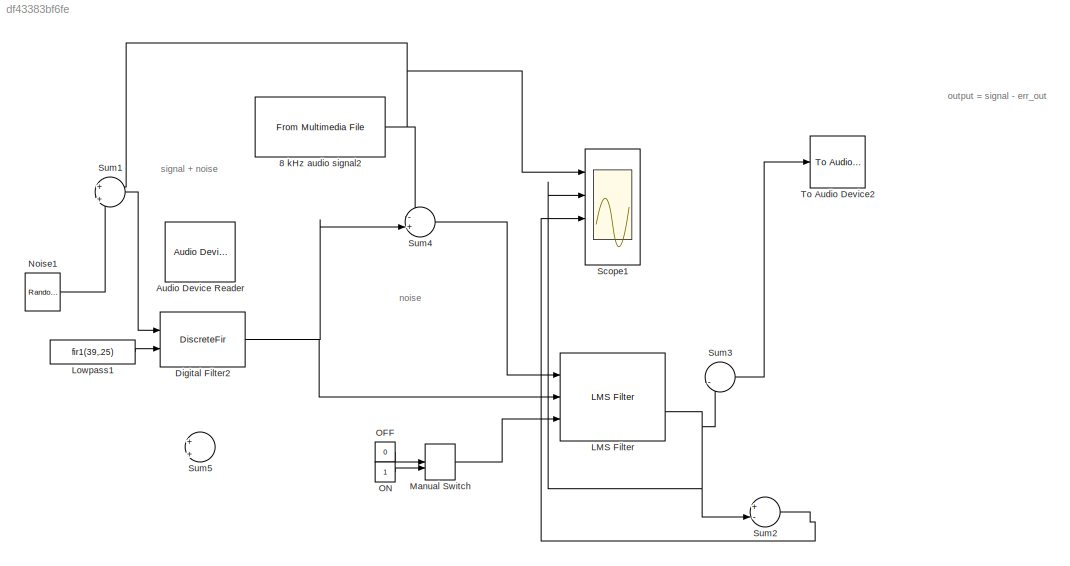
MODEL slx_df43383bf6fe
KIND model
CONFIG AbsTol = auto
CONFIG EnableMultiTasking = off
CONFIG FixedStep = auto
CONFIG MaxStep = auto
CONFIG MinStep = auto
CONFIG RelTol = 1e-3
CONFIG SampleTimeConstraint = Unconstrained
CONFIG Solver = VariableStepAuto
CONFIG SolverName = VariableStepAuto
CONFIG StartTime = 0.0
CONFIG StopTime = 100.0
BLOCK [Reference] 8 kHz audio signal2  REF=dspvision/From Multimedia File
  Ports = [0, 1]
  SourceBlock = dspvision/From Multimedia File
  SourceType = From Multimedia File
BLOCK [Reference] Audio Device Reader  REF=audiosources/Audio Device
Reader
  Ports = [0, 1]
  SourceBlock = audiosources/Audio Device\nReader
  SourceType = Audio Device Reader
BLOCK [DiscreteFir] Digital Filter2
  AccumDataTypeStr = Inherit: Same as product output
  CoefSource = Input port
  Coefficients = [1 2]
  InputPortMap = u0,u1
  InputProcessing = Columns as channels (frame based)
  OutDataTypeStr = Inherit: Same as input
  OutputPortMap = o0
  Ports = [2, 1]
  ProductDataTypeStr = Inherit: Same as input
  StateDataTypeStr = Inherit: Same as input
BLOCK [Reference] LMS Filter  REF=dspadpt3/LMS Filter
  Ports = [3, 2]
  SourceBlock = dspadpt3/LMS Filter
  SourceType = LMS Filter
BLOCK [Constant] Lowpass1
  OutDataTypeStr = Inherit: Inherit via back propagation
  Value = fir1(39,.25)
BLOCK [ManualSwitch] Manual Switch
  CurrentSetting = 0
BLOCK [Reference] Noise1  REF=dspsrcs4/Random
Source
  Ports = [0, 1]
  SourceBlock = dspsrcs4/Random\nSource
  SourceType = Random Source
  UserDataPersistent = on
BLOCK [Constant] OFF
  Value = 0
BLOCK [Constant] ON
BLOCK [Scope] Scope1
  NumInputPorts = 4
  Ports = [4]
  ScopeSpecificationString = Simulink.scopes.TimeScopeBlockCfg('CurrentConfiguration', extmgr.ConfigurationSet(extmgr.Configuration('Core','General UI',true),extmgr.Configuration('Core','Source UI',true),extmgr.Configuration('Sources','WiredSimulink',true,'DataLoggingVariableName','ScopeData1'),extmgr.Configuration('Visuals','Time Domain',true,'SerializedDisplays',{struct('MinYLimReal','-0.32025','MaxYLimReal','0.32642','YLab...<+9578ch>
BLOCK [Sum] Sum1
  IconShape = round
  InputSameDT = off
  Inputs = +|+
  OutDataTypeStr = Inherit: Inherit via internal rule
  Ports = [2, 1]
  SaturateOnIntegerOverflow = off
BLOCK [Sum] Sum2
  IconShape = round
  InputSameDT = off
  Inputs = +-|
  OutDataTypeStr = Inherit: Inherit via internal rule
  Ports = [2, 1]
  SaturateOnIntegerOverflow = off
BLOCK [Sum] Sum3
  IconShape = round
  InputSameDT = off
  Inputs = |-+
  OutDataTypeStr = Inherit: Inherit via internal rule
  Ports = [2, 1]
  SaturateOnIntegerOverflow = off
BLOCK [Sum] Sum4
  IconShape = round
  InputSameDT = off
  Inputs = -+|
  OutDataTypeStr = Inherit: Inherit via internal rule
  Ports = [2, 1]
  SaturateOnIntegerOverflow = off
BLOCK [Sum] Sum5
  IconShape = round
  InputSameDT = off
  Inputs = +|+
  OutDataTypeStr = Inherit: Inherit via internal rule
  Ports = [2, 1]
  SaturateOnIntegerOverflow = off
BLOCK [Reference] To Audio Device2  REF=dspobslib/To Audio
Device
  Ports = [1]
  SourceBlock = dspobslib/To Audio\nDevice
  SourceType = To Audio Device
ANNOTATION (root): noise
ANNOTATION (root): output = signal - err_out
ANNOTATION (root): signal + noise
NET 8 kHz audio signal2:1 -> Scope1:1, Sum1:1, Sum4:1
NET Digital Filter2:1 -> LMS Filter:2, Sum4:2
NET LMS Filter:2 -> Scope1:2, Sum2:2, Sum3:2
LINE Lowpass1:1 -> Digital Filter2:2
LINE Manual Switch:1 -> LMS Filter:3
LINE Noise1:1 -> Sum1:2
LINE OFF:1 -> Manual Switch:1
LINE ON:1 -> Manual Switch:2
LINE Sum1:1 -> Digital Filter2:1
LINE Sum2:1 -> Scope1:3
LINE Sum3:1 -> To Audio Device2:1
LINE Sum4:1 -> LMS Filter:1
note: NET lines group one-source signal fan-out (src -> all destinations, sorted); 1:1 wires keep LINE
